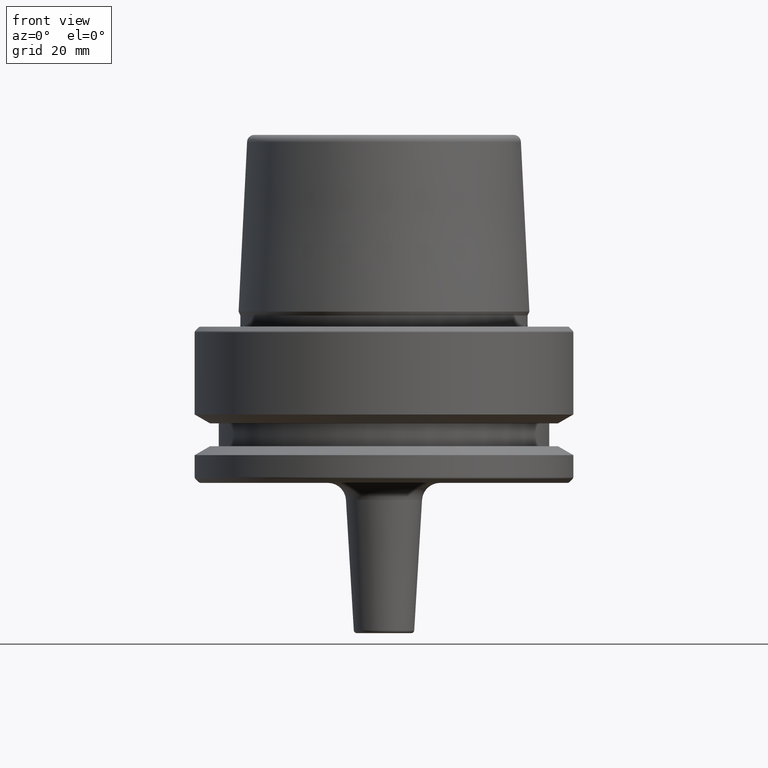
[diagram: clean part render]
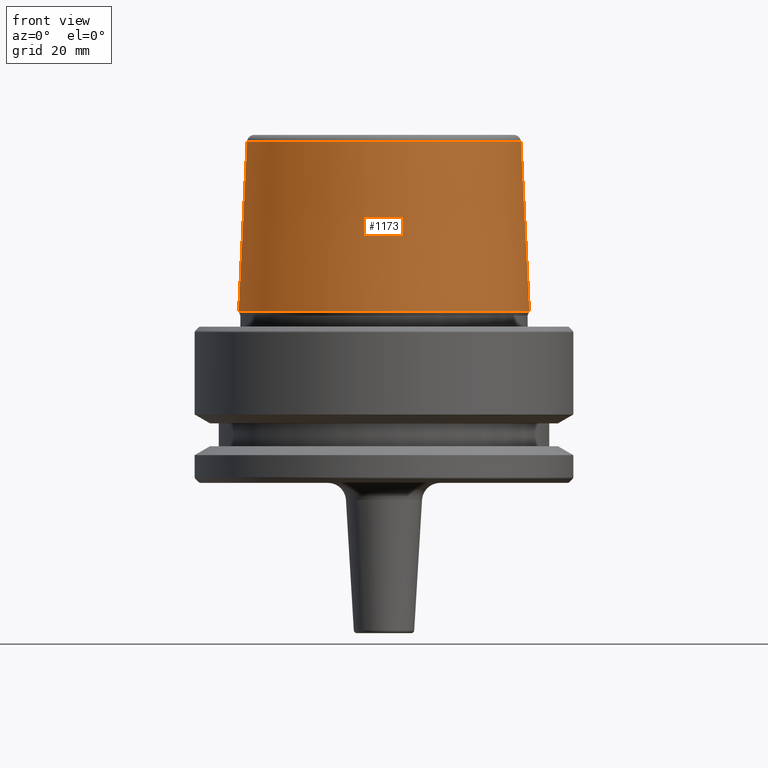
[diagram: same view with one face highlighted and labeled with its STEP entity id]
A machine part, front view. The second image highlights one B-rep face of the part: STEP entity #1173.
In plain terms, the highlighted conical surface has half-angle 2.868 deg.
Its self-contained STEP definition (entity closure, byte-faithful):
#33 = CIRCLE ( 'NONE', #1019, 24.19537568275369200 ) ;
#101 = LINE ( 'NONE', #344, #857 ) ;
#112 = DIRECTION ( 'NONE',  ( 1.000000000000000000, 0.0000000000000000000, 0.0000000000000000000 ) ) ;
#228 = VERTEX_POINT ( 'NONE', #538 ) ;
#259 = CIRCLE ( 'NONE', #466, 22.77957961851797100 ) ;
#305 = DIRECTION ( 'NONE',  ( -0.0000000000000000000, -0.0000000000000000000, 1.000000000000000000 ) ) ;
#316 = EDGE_CURVE ( 'NONE', #228, #1032, #259, .T. ) ;
#344 = CARTESIAN_POINT ( 'NONE',  ( -24.19537568275369200, 0.0000000000000000000, 2.500000000000002200 ) ) ;
#347 = VECTOR ( 'NONE', #495, 1000.000000000000200 ) ;
#353 = DIRECTION ( 'NONE',  ( -1.000000000000000000, 0.0000000000000000000, 0.0000000000000000000 ) ) ;
#368 = CARTESIAN_POINT ( 'NONE',  ( 0.0000000000000000000, 0.0000000000000000000, 2.500000000000002200 ) ) ;
#373 = EDGE_LOOP ( 'NONE', ( #1176, #524, #1153, #964 ) ) ;
#466 = AXIS2_PLACEMENT_3D ( 'NONE', #999, #305, #112 ) ;
#475 = DIRECTION ( 'NONE',  ( 1.000000000000000000, 0.0000000000000000000, 0.0000000000000000000 ) ) ;
#495 = DIRECTION ( 'NONE',  ( 0.05003611051310804400, 6.127656258166099700E-018, -0.9987474093306675200 ) ) ;
#524 = ORIENTED_EDGE ( 'NONE', *, *, #316, .F. ) ;
#538 = CARTESIAN_POINT ( 'NONE',  ( -22.77957961851797100, 0.0000000000000000000, 30.76004333261571900 ) ) ;
#601 = CARTESIAN_POINT ( 'NONE',  ( 24.19537568275369200, 2.963078938405201500E-015, 2.500000000000002200 ) ) ;
#688 = EDGE_CURVE ( 'NONE', #1032, #761, #865, .T. ) ;
#713 = CONICAL_SURFACE ( 'NONE', #840, 24.19537568275369200, 0.05005701257455997400 ) ;
#726 = DIRECTION ( 'NONE',  ( -0.05003611051310804400, 0.0000000000000000000, -0.9987474093306675200 ) ) ;
#740 = DIRECTION ( 'NONE',  ( 0.0000000000000000000, 0.0000000000000000000, -1.000000000000000000 ) ) ;
#761 = VERTEX_POINT ( 'NONE', #1111 ) ;
#840 = AXIS2_PLACEMENT_3D ( 'NONE', #843, #740, #353 ) ;
#843 = CARTESIAN_POINT ( 'NONE',  ( 0.0000000000000000000, 0.0000000000000000000, 2.500000000000002200 ) ) ;
#857 = VECTOR ( 'NONE', #726, 1000.000000000000200 ) ;
#865 = LINE ( 'NONE', #601, #347 ) ;
#905 = EDGE_CURVE ( 'NONE', #228, #1013, #101, .T. ) ;
#936 = CARTESIAN_POINT ( 'NONE',  ( 22.77957961851797100, 2.876386432489616700E-015, 30.76004333261571900 ) ) ;
#964 = ORIENTED_EDGE ( 'NONE', *, *, #1089, .T. ) ;
#998 = FACE_OUTER_BOUND ( 'NONE', #373, .T. ) ;
#999 = CARTESIAN_POINT ( 'NONE',  ( 0.0000000000000000000, 0.0000000000000000000, 30.76004333261571900 ) ) ;
#1013 = VERTEX_POINT ( 'NONE', #1130 ) ;
#1019 = AXIS2_PLACEMENT_3D ( 'NONE', #368, #1052, #475 ) ;
#1032 = VERTEX_POINT ( 'NONE', #936 ) ;
#1052 = DIRECTION ( 'NONE',  ( -0.0000000000000000000, -0.0000000000000000000, 1.000000000000000000 ) ) ;
#1089 = EDGE_CURVE ( 'NONE', #1013, #761, #33, .T. ) ;
#1111 = CARTESIAN_POINT ( 'NONE',  ( 24.19537568275369200, 0.0000000000000000000, 2.500000000000002200 ) ) ;
#1130 = CARTESIAN_POINT ( 'NONE',  ( -24.19537568275369200, 2.963078938405201500E-015, 2.500000000000002200 ) ) ;
#1153 = ORIENTED_EDGE ( 'NONE', *, *, #905, .T. ) ;
#1173 = ADVANCED_FACE ( 'NONE', ( #998 ), #713, .T. ) ;
#1176 = ORIENTED_EDGE ( 'NONE', *, *, #688, .F. ) ;